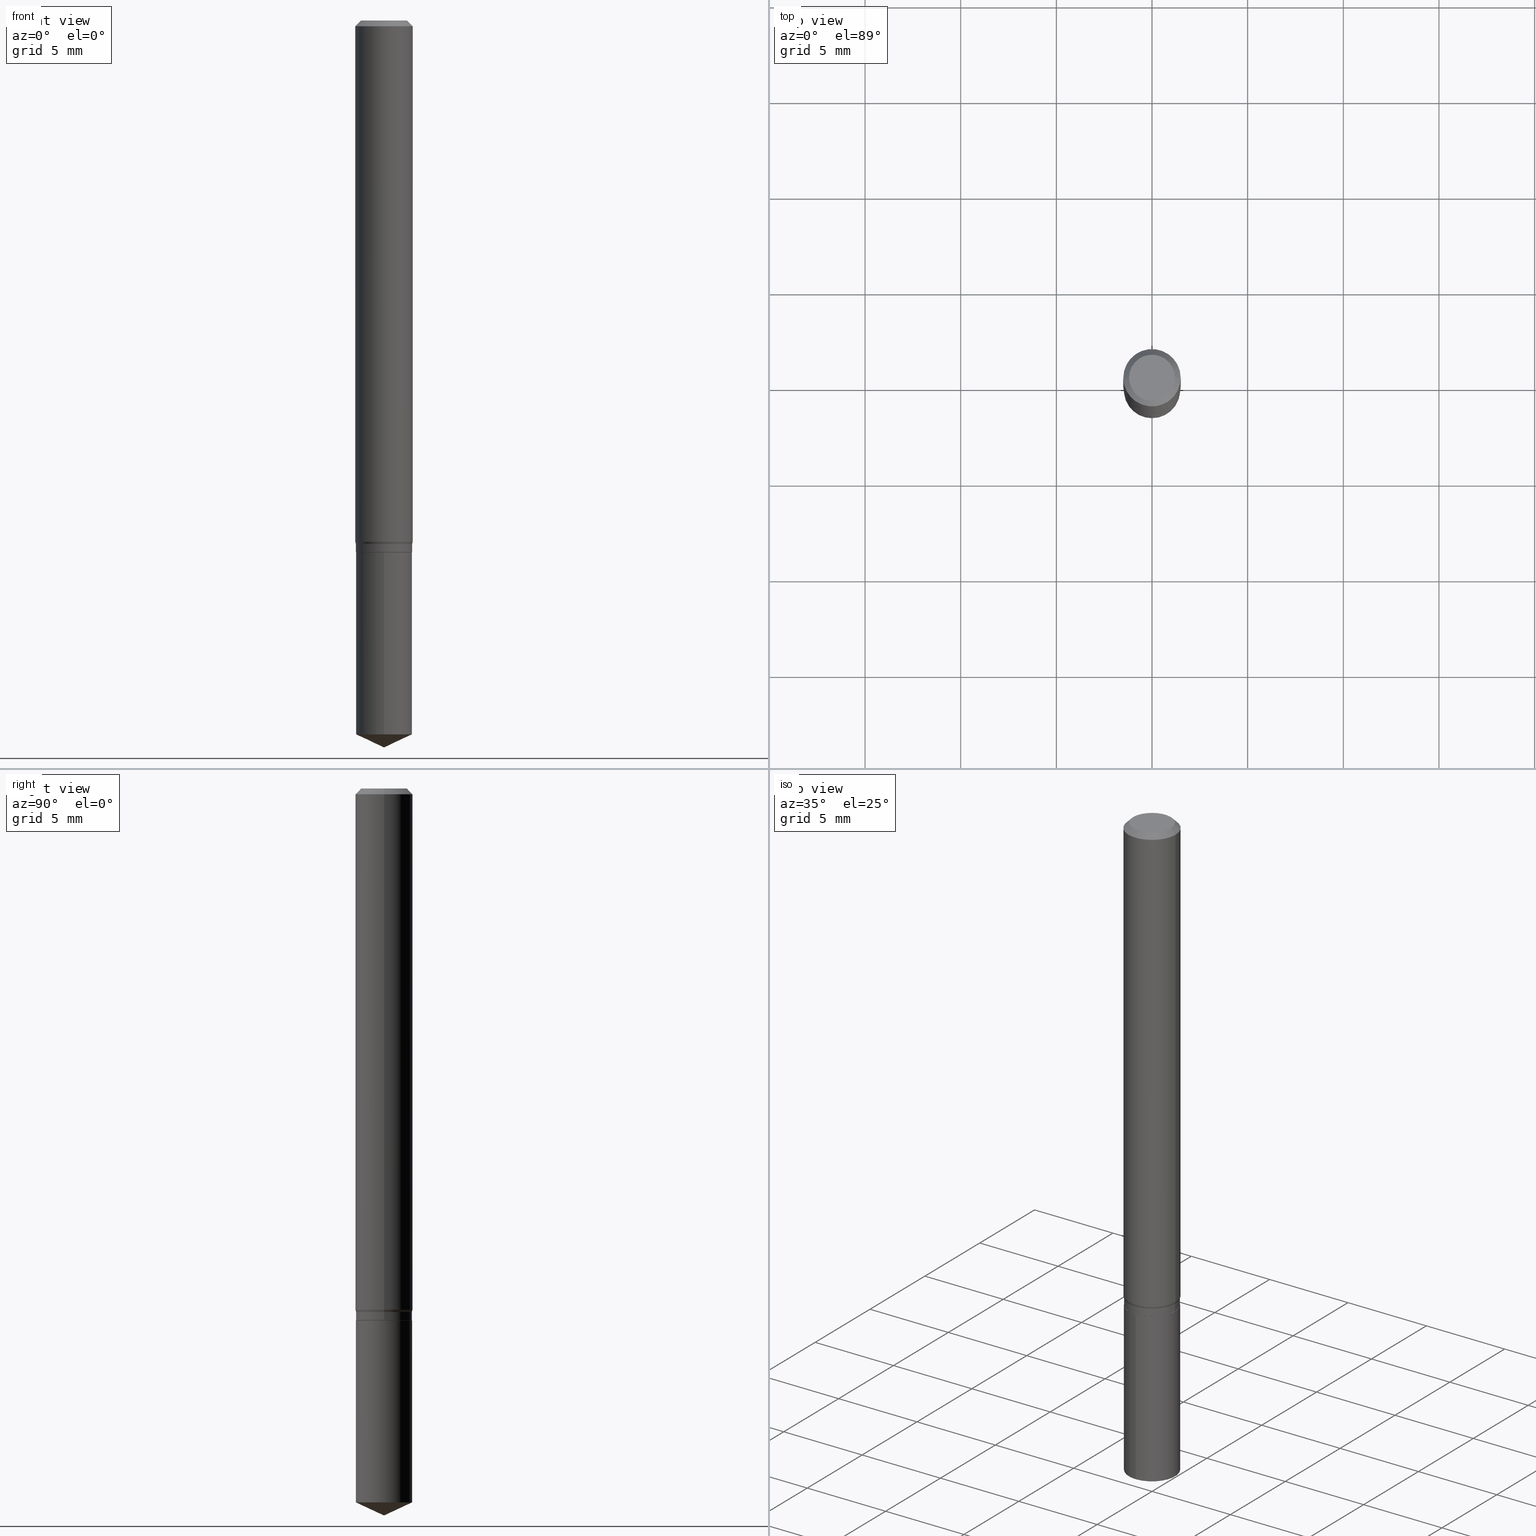
[diagram: canonical four-view strip — front | top / right | iso, engineering-drawing reading convention]
A machine part, canonical four-view strip (front | top / right | iso — engineering-drawing reading convention). The complete STEP part file that produces these views, byte-faithful:
ISO-10303-21;
HEADER;
FILE_DESCRIPTION (( 'STEP AP203' ),
    '1' );
FILE_NAME ('08057.STEP',
    '2024-04-24T10:11:01',
    ( '' ),
    ( '' ),
    'SwSTEP 2.0',
    'SolidWorks 2023',
    '' );
FILE_SCHEMA (( 'CONFIG_CONTROL_DESIGN' ));
ENDSEC;

DATA;
#1 = PERSON ( 'UNSPECIFIED', 'UNSPECIFIED', 'UNSPECIFIED', ('UNSPECIFIED'), ('UNSPECIFIED'), ('UNSPECIFIED') ) ;
#2 = COORDINATED_UNIVERSAL_TIME_OFFSET ( 5, 0, .BEHIND. ) ;
#3 = AXIS2_PLACEMENT_3D ( 'NONE', #278, #166, #120 ) ;
#4 = APPROVAL_PERSON_ORGANIZATION ( #38, #121, #346 ) ;
#5 = LINE ( 'NONE', #8, #486 ) ;
#6 = APPLICATION_PROTOCOL_DEFINITION ( 'international standard', 'config_control_design', 1994, #290 ) ;
#7 = EDGE_CURVE ( 'NONE', #10, #58, #234, .T. ) ;
#8 = CARTESIAN_POINT ( 'NONE',  ( 0.05734999999999999820, -4.221899234929130680E-15, -1.094500000000000028 ) ) ;
#9 =( NAMED_UNIT ( * ) PLANE_ANGLE_UNIT ( ) SI_UNIT ( $, .RADIAN. ) );
#10 = VERTEX_POINT ( 'NONE', #389 ) ;
#11 = MANIFOLD_SOLID_BREP ( 'Body-Move/Copy2[1]', #316 ) ;
#12 = CIRCLE ( 'NONE', #219, 0.05904999999999999832 ) ;
#13 = DIRECTION ( 'NONE',  ( 1.000000000000000000, -6.982962677686266711E-15, 4.876185090822587894E-29 ) ) ;
#14 = DIRECTION ( 'NONE',  ( -2.445468806185136597E-29, 3.491481338843145583E-15, 1.000000000000000000 ) ) ;
#15 = EDGE_CURVE ( 'NONE', #142, #489, #448, .T. ) ;
#16 = CARTESIAN_POINT ( 'NONE',  ( 3.592693452449994614E-29, -5.129424701352268102E-15, -1.469124101975733288 ) ) ;
#17 = VERTEX_POINT ( 'NONE', #252 ) ;
#18 = ORIENTED_EDGE ( 'NONE', *, *, #254, .F. ) ;
#19 = DIRECTION ( 'NONE',  ( -2.445468806185136877E-29, 3.491481338843145188E-15, 1.000000000000000000 ) ) ;
#20 = AXIS2_PLACEMENT_3D ( 'NONE', #198, #472, #367 ) ;
#21 = AXIS2_PLACEMENT_3D ( 'NONE', #158, #425, #207 ) ;
#22 = EDGE_CURVE ( 'NONE', #458, #137, #12, .T. ) ;
#23 = DIRECTION ( 'NONE',  ( 0.7071067811865453523, -7.319954787623248157E-15, -0.7071067811865496822 ) ) ;
#24 = PLANE ( 'NONE',  #188 ) ;
#25 = PERSON_AND_ORGANIZATION ( #1, #88 ) ;
#26 = AXIS2_PLACEMENT_3D ( 'NONE', #419, #83, #241 ) ;
#27 = CALENDAR_DATE ( 2024, 24, 4 ) ;
#28 = ORIENTED_EDGE ( 'NONE', *, *, #71, .T. ) ;
#29 = CARTESIAN_POINT ( 'NONE',  ( -0.05784999999999999865, -3.379128594743958630E-15, -1.077099999999999946 ) ) ;
#30 = PERSON_AND_ORGANIZATION_ROLE ( 'creator' ) ;
#31 = CC_DESIGN_PERSON_AND_ORGANIZATION_ASSIGNMENT ( #333, #377, ( #317 ) ) ;
#32 = CARTESIAN_POINT ( 'NONE',  ( 3.658651059288795076E-29, -5.223626456482161457E-15, -1.496099999999999985 ) ) ;
#33 = CIRCLE ( 'NONE', #292, 0.05784999999999999865 ) ;
#34 = LOCAL_TIME ( 6, 11, 1.000000000000000000, #324 ) ;
#35 = DIRECTION ( 'NONE',  ( -6.982962677686265922E-15, -1.000000000000000000, 2.361147790548196524E-15 ) ) ;
#36 = EDGE_CURVE ( 'NONE', #42, #267, #431, .T. ) ;
#37 = ORIENTED_EDGE ( 'NONE', *, *, #347, .T. ) ;
#38 = PERSON_AND_ORGANIZATION ( #1, #88 ) ;
#39 = DIRECTION ( 'NONE',  ( -2.445468806185136597E-29, 3.491481338843145583E-15, 1.000000000000000000 ) ) ;
#40 = EDGE_CURVE ( 'NONE', #137, #458, #118, .T. ) ;
#41 = CONICAL_SURFACE ( 'NONE', #235, 0.05784999999999999865, 0.2617993877991466878 ) ;
#42 = VERTEX_POINT ( 'NONE', #242 ) ;
#43 = FACE_OUTER_BOUND ( 'NONE', #309, .T. ) ;
#44 = ORIENTED_EDGE ( 'NONE', *, *, #276, .F. ) ;
#45 = ADVANCED_FACE ( 'NONE', ( #394 ), #162, .T. ) ;
#46 = CARTESIAN_POINT ( 'NONE',  ( 0.05904999999999999832, -4.535783407291118600E-16, -0.01181000000000006871 ) ) ;
#47 = DIRECTION ( 'NONE',  ( -2.445468806185136597E-29, 3.491481338843145583E-15, 1.000000000000000000 ) ) ;
#48 = AXIS2_PLACEMENT_3D ( 'NONE', #360, #164, #59 ) ;
#49 = APPROVAL ( #355, 'UNSPECIFIED' ) ;
#50 = DIRECTION ( 'NONE',  ( 0.2588190451025181305, 1.565188264969647211E-15, 0.9659258262890689783 ) ) ;
#51 = ORIENTED_EDGE ( 'NONE', *, *, #63, .F. ) ;
#52 = ORIENTED_EDGE ( 'NONE', *, *, #391, .T. ) ;
#53 = DIRECTION ( 'NONE',  ( -2.445468806185136597E-29, 3.491481338843145583E-15, 1.000000000000000000 ) ) ;
#54 = CALENDAR_DATE ( 2024, 24, 4 ) ;
#55 = DIRECTION ( 'NONE',  ( -2.445468806185136877E-29, 3.491481338843145188E-15, 1.000000000000000000 ) ) ;
#56 =( CONVERSION_BASED_UNIT ( 'INCH', #205 ) LENGTH_UNIT ( ) NAMED_UNIT ( #156 ) );
#57 = EDGE_LOOP ( 'NONE', ( #467, #465, #386, #319 ) ) ;
#58 = VERTEX_POINT ( 'NONE', #463 ) ;
#59 = DIRECTION ( 'NONE',  ( 1.000000000000000000, -6.982962677686265133E-15, 0.000000000000000000 ) ) ;
#60 = ADVANCED_FACE ( 'NONE', ( #244 ), #100, .T. ) ;
#61 = CARTESIAN_POINT ( 'NONE',  ( 2.676565608369632355E-29, -3.821426325363822773E-15, -1.094500000000000028 ) ) ;
#62 = DIRECTION ( 'NONE',  ( 2.445458899330789267E-29, -3.491495526022433599E-15, -1.000000000000000000 ) ) ;
#63 = EDGE_CURVE ( 'NONE', #267, #458, #287, .T. ) ;
#64 = DIRECTION ( 'NONE',  ( 6.439704144417028775E-15, 0.9063077870366521571, 0.4226182617406948894 ) ) ;
#65 = APPROVAL_ROLE ( '' ) ;
#66 = AXIS2_PLACEMENT_3D ( 'NONE', #480, #138, #187 ) ;
#67 = FACE_OUTER_BOUND ( 'NONE', #151, .T. ) ;
#68 = PRODUCT_DEFINITION_FORMATION_WITH_SPECIFIED_SOURCE ( 'ANY', '', #82, .NOT_KNOWN. ) ;
#69 = CARTESIAN_POINT ( 'NONE',  ( 2.634014451142010375E-29, -3.760674550067952083E-15, -1.077099999999999946 ) ) ;
#70 = DESIGN_CONTEXT ( 'detailed design', #113, 'design' ) ;
#71 = EDGE_CURVE ( 'NONE', #42, #255, #435, .T. ) ;
#72 = DIRECTION ( 'NONE',  ( -2.445458899330790108E-29, 3.491495526022433599E-15, 1.000000000000000000 ) ) ;
#73 = VECTOR ( 'NONE', #263, 39.37007874015748143 ) ;
#74 = CC_DESIGN_APPROVAL ( #409, ( #317 ) ) ;
#75 = DIRECTION ( 'NONE',  ( -0.7071067811865453523, 2.468850131082234184E-15, -0.7071067811865496822 ) ) ;
#76 = EDGE_CURVE ( 'NONE', #439, #142, #33, .T. ) ;
#77 = ORIENTED_EDGE ( 'NONE', *, *, #22, .F. ) ;
#78 = CARTESIAN_POINT ( 'NONE',  ( 0.000000000000000000, 0.000000000000000000, 0.000000000000000000 ) ) ;
#79 = CYLINDRICAL_SURFACE ( 'NONE', #171, 0.05784999999999999865 ) ;
#80 = ORIENTED_EDGE ( 'NONE', *, *, #168, .T. ) ;
#81 = FACE_OUTER_BOUND ( 'NONE', #469, .T. ) ;
#82 = PRODUCT ( '08057', '08057', '', ( #411 ) ) ;
#83 = DIRECTION ( 'NONE',  ( -2.445458899330790108E-29, 3.491495526022433205E-15, 1.000000000000000000 ) ) ;
#84 = CARTESIAN_POINT ( 'NONE',  ( 2.676565608369632355E-29, -3.821426325363822773E-15, -1.094500000000000028 ) ) ;
#85 = EDGE_CURVE ( 'NONE', #414, #42, #427, .T. ) ;
#86 = LINE ( 'NONE', #323, #259 ) ;
#87 = VECTOR ( 'NONE', #50, 39.37007874015748143 ) ;
#88 = ORGANIZATION ( 'UNSPECIFIED', 'UNSPECIFIED', '' ) ;
#89 = CALENDAR_DATE ( 2024, 24, 4 ) ;
#90 = DIRECTION ( 'NONE',  ( 1.000000000000000000, -6.982962677686265922E-15, 4.876176775795935793E-29 ) ) ;
#91 = DIRECTION ( 'NONE',  ( -2.445468806185136597E-29, 3.491481338843145583E-15, 1.000000000000000000 ) ) ;
#92 = VERTEX_POINT ( 'NONE', #475 ) ;
#93 = CARTESIAN_POINT ( 'NONE',  ( 0.05905000000000006771, -4.123439461173745257E-16, 2.879382386107503723E-30 ) ) ;
#94 = EDGE_CURVE ( 'NONE', #281, #10, #134, .T. ) ;
#95 = ORIENTED_EDGE ( 'NONE', *, *, #408, .F. ) ;
#96 = CARTESIAN_POINT ( 'NONE',  ( 2.888098660104663328E-31, -4.123439461173779030E-17, -0.01181000000000006871 ) ) ;
#97 = CC_DESIGN_PERSON_AND_ORGANIZATION_ASSIGNMENT ( #25, #30, ( #68 ) ) ;
#98 = CARTESIAN_POINT ( 'NONE',  ( 2.676565608369631794E-29, -3.821426325363822773E-15, -1.094499999999999806 ) ) ;
#99 = ORIENTED_EDGE ( 'NONE', *, *, #7, .T. ) ;
#100 = CONICAL_SURFACE ( 'NONE', #265, 84.42940631927430672, 1.134464013796315784 ) ;
#101 = LOCAL_TIME ( 6, 11, 1.000000000000000000, #373 ) ;
#102 = LINE ( 'NONE', #375, #302 ) ;
#103 = DIRECTION ( 'NONE',  ( -2.438088387897960049E-29, 3.491481338843145188E-15, 1.000000000000000000 ) ) ;
#104 = FACE_OUTER_BOUND ( 'NONE', #313, .T. ) ;
#105 = VERTEX_POINT ( 'NONE', #432 ) ;
#106 = CONICAL_SURFACE ( 'NONE', #387, 0.05904999999999999832, 0.7853981633974452814 ) ;
#107 = DIRECTION ( 'NONE',  ( 1.000000000000000000, -6.982962677686265922E-15, 4.876176775795935793E-29 ) ) ;
#108 = ADVANCED_FACE ( 'NONE', ( #253 ), #204, .T. ) ;
#109 = CARTESIAN_POINT ( 'NONE',  ( -4.039643909041237478E-16, -0.05785000000000382198, -1.094499999999999806 ) ) ;
#110 = AXIS2_PLACEMENT_3D ( 'NONE', #401, #370, #90 ) ;
#111 = AXIS2_PLACEMENT_3D ( 'NONE', #345, #453, #268 ) ;
#112 = ORIENTED_EDGE ( 'NONE', *, *, #371, .F. ) ;
#113 = APPLICATION_CONTEXT ( 'configuration controlled 3d designs of mechanical parts and assemblies' ) ;
#114 = EDGE_LOOP ( 'NONE', ( #481, #192, #126, #44 ) ) ;
#115 = DIRECTION ( 'NONE',  ( 0.000000000000000000, 0.000000000000000000, 1.000000000000000000 ) ) ;
#116 = PRODUCT_DEFINITION_SHAPE ( 'NONE', 'NONE',  #159 ) ;
#117 = ORIENTED_EDGE ( 'NONE', *, *, #329, .F. ) ;
#118 = CIRCLE ( 'NONE', #245, 0.05904999999999999832 ) ;
#119 = AXIS2_PLACEMENT_3D ( 'NONE', #308, #262, #189 ) ;
#120 = DIRECTION ( 'NONE',  ( -6.982962677686268288E-15, -1.000000000000000000, 3.520397390770455053E-15 ) ) ;
#121 = APPROVAL ( #193, 'UNSPECIFIED' ) ;
#122 = DIRECTION ( 'NONE',  ( -1.000000000000000000, 6.982962677686266711E-15, 0.000000000000000000 ) ) ;
#123 = DIRECTION ( 'NONE',  ( -2.445458899330790108E-29, 3.491495526022433205E-15, 1.000000000000000000 ) ) ;
#124 = ORIENTED_EDGE ( 'NONE', *, *, #254, .T. ) ;
#125 = CARTESIAN_POINT ( 'NONE',  ( 2.676565608369631794E-29, -3.821426325363822773E-15, -1.094499999999999806 ) ) ;
#126 = ORIENTED_EDGE ( 'NONE', *, *, #85, .T. ) ;
#127 = VECTOR ( 'NONE', #186, 39.37007874015748854 ) ;
#128 = EDGE_CURVE ( 'NONE', #105, #489, #450, .T. ) ;
#129 = CARTESIAN_POINT ( 'NONE',  ( -0.04724000000000000421, 3.504923541997677355E-16, -3.380025165670481712E-19 ) ) ;
#130 = DIRECTION ( 'NONE',  ( -2.445468806185136877E-29, 3.491481338843145188E-15, 1.000000000000000000 ) ) ;
#131 = DIRECTION ( 'NONE',  ( -6.982962677686268288E-15, -1.000000000000000000, 3.520397390770455053E-15 ) ) ;
#132 = ADVANCED_FACE ( 'NONE', ( #318 ), #328, .T. ) ;
#133 = EDGE_LOOP ( 'NONE', ( #18, #52, #331 ) ) ;
#134 = CIRCLE ( 'NONE', #471, 0.05734999999999999820 ) ;
#135 = AXIS2_PLACEMENT_3D ( 'NONE', #283, #91, #279 ) ;
#136 = CARTESIAN_POINT ( 'NONE',  ( 2.676565608369632355E-29, -3.821426325363822773E-15, -1.094500000000000028 ) ) ;
#137 = VERTEX_POINT ( 'NONE', #275 ) ;
#138 = DIRECTION ( 'NONE',  ( -2.445468806185136597E-29, 3.491481338843145583E-15, 1.000000000000000000 ) ) ;
#139 = APPROVAL_ROLE ( '' ) ;
#140 = DIRECTION ( 'NONE',  ( -1.000000000000000000, 6.982962677686266711E-15, 0.000000000000000000 ) ) ;
#141 = APPROVAL_DATE_TIME ( #222, #49 ) ;
#142 = VERTEX_POINT ( 'NONE', #421 ) ;
#143 = EDGE_CURVE ( 'NONE', #255, #256, #86, .T. ) ;
#144 = CARTESIAN_POINT ( 'NONE',  ( 8.562420094366031687E-30, -6.428233325420959968E-15, -1.094500000000000028 ) ) ;
#145 = DIRECTION ( 'NONE',  ( 2.445468806185136597E-29, -3.491481338843145583E-15, -1.000000000000000000 ) ) ;
#146 = CIRCLE ( 'NONE', #135, 0.05734999999999999820 ) ;
#147 = CARTESIAN_POINT ( 'NONE',  ( 2.676565608369631794E-29, -3.821426325363822773E-15, -1.094499999999999806 ) ) ;
#148 = ADVANCED_FACE ( 'NONE', ( #250 ), #396, .T. ) ;
#149 = DIRECTION ( 'NONE',  ( 1.000000000000000000, -6.982962677686265133E-15, 0.000000000000000000 ) ) ;
#150 = AXIS2_PLACEMENT_3D ( 'NONE', #147, #196, #35 ) ;
#151 = EDGE_LOOP ( 'NONE', ( #206, #182, #365, #351 ) ) ;
#152 = CALENDAR_DATE ( 2024, 24, 4 ) ;
#153 = DIRECTION ( 'NONE',  ( -6.982962677686265922E-15, -1.000000000000000000, 2.361147790548196524E-15 ) ) ;
#154 = CARTESIAN_POINT ( 'NONE',  ( -0.05734999999999999820, -3.413930066405405625E-15, -1.094500000000000028 ) ) ;
#155 = ORIENTED_EDGE ( 'NONE', *, *, #128, .F. ) ;
#156 = DIMENSIONAL_EXPONENTS ( 1.000000000000000000, 0.000000000000000000, 0.000000000000000000, 0.000000000000000000, 0.000000000000000000, 0.000000000000000000, 0.000000000000000000 ) ;
#157 = ORIENTED_EDGE ( 'NONE', *, *, #15, .F. ) ;
#158 = CARTESIAN_POINT ( 'NONE',  ( 2.675342873966538993E-29, -3.819680584694400481E-15, -1.093999999999999861 ) ) ;
#159 = PRODUCT_DEFINITION ( 'UNKNOWN', '', #68, #70 ) ;
#160 = DIRECTION ( 'NONE',  ( -6.982962677686265922E-15, -1.000000000000000000, 2.361147790548196524E-15 ) ) ;
#161 = AXIS2_PLACEMENT_3D ( 'NONE', #169, #53, #208 ) ;
#162 = CONICAL_SURFACE ( 'NONE', #476, 0.05734999999999999820, 0.7853981633972775267 ) ;
#163 = EDGE_LOOP ( 'NONE', ( #247, #335 ) ) ;
#164 = DIRECTION ( 'NONE',  ( -2.445468806185136597E-29, 3.491481338843145583E-15, 1.000000000000000000 ) ) ;
#165 = CARTESIAN_POINT ( 'NONE',  ( 4.110489726372537918E-16, 0.05784999999999485693, -1.469124101975733732 ) ) ;
#166 = DIRECTION ( 'NONE',  ( -2.445458899330790108E-29, 3.491495526022433205E-15, 1.000000000000000000 ) ) ;
#167 = PERSON_AND_ORGANIZATION_ROLE ( 'creator' ) ;
#168 = EDGE_CURVE ( 'NONE', #256, #137, #326, .T. ) ;
#169 = CARTESIAN_POINT ( 'NONE',  ( 0.000000000000000000, 0.000000000000000000, 0.000000000000000000 ) ) ;
#170 = CIRCLE ( 'NONE', #20, 0.05784999999999999865 ) ;
#171 = AXIS2_PLACEMENT_3D ( 'NONE', #228, #490, #153 ) ;
#172 = DIRECTION ( 'NONE',  ( -6.982962677686265922E-15, -1.000000000000000000, 4.722295581096393049E-15 ) ) ;
#173 = MANIFOLD_SOLID_BREP ( 'Body-Move/Copy2[2]', #201 ) ;
#174 = EDGE_LOOP ( 'NONE', ( #28, #214, #195, #243 ) ) ;
#175 = DIRECTION ( 'NONE',  ( 0.7071067811864267805, -2.468850131080992517E-15, 0.7071067811866682540 ) ) ;
#176 = FACE_OUTER_BOUND ( 'NONE', #269, .T. ) ;
#177 = EDGE_LOOP ( 'NONE', ( #315, #183 ) ) ;
#178 = DIRECTION ( 'NONE',  ( 2.438088387897960049E-29, -3.491481338843145188E-15, -1.000000000000000000 ) ) ;
#179 = ADVANCED_FACE ( 'NONE', ( #372 ), #24, .F. ) ;
#180 = PERSON_AND_ORGANIZATION_ROLE ( 'design_supplier' ) ;
#181 = VECTOR ( 'NONE', #19, 39.37007874015748143 ) ;
#182 = ORIENTED_EDGE ( 'NONE', *, *, #397, .F. ) ;
#183 = ORIENTED_EDGE ( 'NONE', *, *, #128, .T. ) ;
#184 = CARTESIAN_POINT ( 'NONE',  ( -0.05905000000000013016, -3.325462601701321059E-15, -1.072621539030916837 ) ) ;
#185 = PERSON_AND_ORGANIZATION ( #1, #88 ) ;
#186 = DIRECTION ( 'NONE',  ( -6.328713451373372534E-15, -0.9063077870366490485, 0.4226182617407011066 ) ) ;
#187 = DIRECTION ( 'NONE',  ( 1.000000000000000000, -6.982962677686266711E-15, 4.876176775795936353E-29 ) ) ;
#188 = AXIS2_PLACEMENT_3D ( 'NONE', #338, #178, #332 ) ;
#189 = DIRECTION ( 'NONE',  ( 1.000000000000000000, -6.982962677686265922E-15, 4.876176775795935793E-29 ) ) ;
#190 = ADVANCED_FACE ( 'NONE', ( #104 ), #348, .T. ) ;
#191 = CYLINDRICAL_SURFACE ( 'NONE', #119, 0.05784999999999999865 ) ;
#192 = ORIENTED_EDGE ( 'NONE', *, *, #408, .T. ) ;
#193 = APPROVAL_STATUS ( 'not_yet_approved' ) ;
#194 = AXIS2_PLACEMENT_3D ( 'NONE', #366, #320, #122 ) ;
#195 = ORIENTED_EDGE ( 'NONE', *, *, #347, .F. ) ;
#196 = DIRECTION ( 'NONE',  ( -2.445458899330790108E-29, 3.491495526022433205E-15, 1.000000000000000000 ) ) ;
#197 = CC_DESIGN_PERSON_AND_ORGANIZATION_ASSIGNMENT ( #231, #384, ( #82 ) ) ;
#198 = CARTESIAN_POINT ( 'NONE',  ( 2.634014451142010375E-29, -3.760674550067952083E-15, -1.077099999999999946 ) ) ;
#199 = ORIENTED_EDGE ( 'NONE', *, *, #312, .F. ) ;
#200 = DIRECTION ( 'NONE',  ( -2.445468806185136877E-29, 3.491481338843145188E-15, 1.000000000000000000 ) ) ;
#201 = CLOSED_SHELL ( 'NONE', ( #45, #418, #223, #271, #334, #108, #382, #148, #264, #179, #378, #190 ) ) ;
#202 = CONICAL_SURFACE ( 'NONE', #350, 0.05784999999999999865, 0.2617993877991466878 ) ;
#203 = CARTESIAN_POINT ( 'NONE',  ( -0.05904999999999999832, 3.711095515056362547E-16, -0.01181000000000006871 ) ) ;
#204 = CYLINDRICAL_SURFACE ( 'NONE', #110, 0.05784999999999999865 ) ;
#205 = LENGTH_MEASURE_WITH_UNIT ( LENGTH_MEASURE( 0.02539999999999999897 ), #376 );
#206 = ORIENTED_EDGE ( 'NONE', *, *, #217, .F. ) ;
#207 = DIRECTION ( 'NONE',  ( 1.000000000000000000, -6.982962677686265133E-15, 0.000000000000000000 ) ) ;
#208 = DIRECTION ( 'NONE',  ( 1.000000000000000000, -6.982962677686266711E-15, 4.876176775795936353E-29 ) ) ;
#209 = PLANE ( 'NONE',  #412 ) ;
#210 = ORIENTED_EDGE ( 'NONE', *, *, #459, .F. ) ;
#211 = DIRECTION ( 'NONE',  ( -2.445458899330790108E-29, 3.491495526022433205E-15, 1.000000000000000000 ) ) ;
#212 = AXIS2_PLACEMENT_3D ( 'NONE', #298, #257, #218 ) ;
#213 = CIRCLE ( 'NONE', #359, 0.04724000000000000421 ) ;
#214 = ORIENTED_EDGE ( 'NONE', *, *, #143, .T. ) ;
#215 = DIRECTION ( 'NONE',  ( -2.445468806185136597E-29, 3.491481338843145583E-15, 1.000000000000000000 ) ) ;
#216 = ORIENTED_EDGE ( 'NONE', *, *, #391, .F. ) ;
#217 = EDGE_CURVE ( 'NONE', #17, #458, #102, .T. ) ;
#218 = DIRECTION ( 'NONE',  ( -6.982962677686265922E-15, -1.000000000000000000, 4.722295581096393049E-15 ) ) ;
#219 = AXIS2_PLACEMENT_3D ( 'NONE', #96, #215, #282 ) ;
#220 = APPROVAL_PERSON_ORGANIZATION ( #258, #409, #65 ) ;
#221 = DIRECTION ( 'NONE',  ( -2.445468806185136597E-29, 3.491481338843145583E-15, 1.000000000000000000 ) ) ;
#222 = DATE_AND_TIME ( #227, #343 ) ;
#223 = ADVANCED_FACE ( 'NONE', ( #176 ), #304, .T. ) ;
#224 = ORIENTED_EDGE ( 'NONE', *, *, #289, .F. ) ;
#225 = LINE ( 'NONE', #32, #127 ) ;
#226 = DIRECTION ( 'NONE',  ( -2.445468806185136597E-29, 3.491481338843145583E-15, 1.000000000000000000 ) ) ;
#227 = CALENDAR_DATE ( 2024, 24, 4 ) ;
#228 = CARTESIAN_POINT ( 'NONE',  ( 2.676565608369631794E-29, -3.821426325363822773E-15, -1.094499999999999806 ) ) ;
#229 = AXIS2_PLACEMENT_3D ( 'NONE', #136, #221, #438 ) ;
#230 = CARTESIAN_POINT ( 'NONE',  ( 2.675342873966538993E-29, -3.819680584694400481E-15, -1.093999999999999861 ) ) ;
#231 = PERSON_AND_ORGANIZATION ( #1, #88 ) ;
#232 = DIRECTION ( 'NONE',  ( -2.445468806185136597E-29, 3.491481338843145583E-15, 1.000000000000000000 ) ) ;
#233 = CARTESIAN_POINT ( 'NONE',  ( 8.265746106709734507E-48, -1.180129479067563789E-33, -3.380025165646692144E-19 ) ) ;
#234 = LINE ( 'NONE', #154, #423 ) ;
#235 = AXIS2_PLACEMENT_3D ( 'NONE', #69, #226, #484 ) ;
#236 = AXIS2_PLACEMENT_3D ( 'NONE', #314, #249, #13 ) ;
#237 = EDGE_CURVE ( 'NONE', #142, #439, #416, .T. ) ;
#238 = CYLINDRICAL_SURFACE ( 'NONE', #26, 0.05784999999999999865 ) ;
#239 = ORIENTED_EDGE ( 'NONE', *, *, #466, .T. ) ;
#240 = CC_DESIGN_DATE_AND_TIME_ASSIGNMENT ( #301, #341, ( #317 ) ) ;
#241 = DIRECTION ( 'NONE',  ( -6.982962677686265922E-15, -1.000000000000000000, 2.361147790548196524E-15 ) ) ;
#242 = CARTESIAN_POINT ( 'NONE',  ( 0.05784999999999999865, -4.164638940972102208E-15, -1.077099999999999946 ) ) ;
#243 = ORIENTED_EDGE ( 'NONE', *, *, #36, .F. ) ;
#244 = FACE_OUTER_BOUND ( 'NONE', #133, .T. ) ;
#245 = AXIS2_PLACEMENT_3D ( 'NONE', #330, #14, #368 ) ;
#246 = CIRCLE ( 'NONE', #236, 0.04724000000000000421 ) ;
#247 = ORIENTED_EDGE ( 'NONE', *, *, #397, .T. ) ;
#248 = SHAPE_DEFINITION_REPRESENTATION ( #116, #483 ) ;
#249 = DIRECTION ( 'NONE',  ( -2.445468806185136597E-29, 3.491481338843145583E-15, 1.000000000000000000 ) ) ;
#250 = FACE_OUTER_BOUND ( 'NONE', #57, .T. ) ;
#251 = LINE ( 'NONE', #398, #388 ) ;
#252 = CARTESIAN_POINT ( 'NONE',  ( 0.04724000000000000421, -3.852183633974369345E-16, -3.380025165621689721E-19 ) ) ;
#253 = FACE_OUTER_BOUND ( 'NONE', #114, .T. ) ;
#254 = EDGE_CURVE ( 'NONE', #92, #439, #440, .T. ) ;
#255 = VERTEX_POINT ( 'NONE', #29 ) ;
#256 = VERTEX_POINT ( 'NONE', #184 ) ;
#257 = DIRECTION ( 'NONE',  ( -2.445458899330790108E-29, 3.491495526022433205E-15, 1.000000000000000000 ) ) ;
#258 = PERSON_AND_ORGANIZATION ( #1, #88 ) ;
#259 = VECTOR ( 'NONE', #468, 39.37007874015748143 ) ;
#260 = APPROVAL_PERSON_ORGANIZATION ( #356, #49, #139 ) ;
#261 = DIRECTION ( 'NONE',  ( -2.445468806185136597E-29, 3.491481338843145583E-15, 1.000000000000000000 ) ) ;
#262 = DIRECTION ( 'NONE',  ( -2.445468806185136597E-29, 3.491481338843145583E-15, 1.000000000000000000 ) ) ;
#263 = DIRECTION ( 'NONE',  ( -2.445458899330790108E-29, 3.491495526022433599E-15, 1.000000000000000000 ) ) ;
#264 = ADVANCED_FACE ( 'NONE', ( #67 ), #106, .T. ) ;
#265 = AXIS2_PLACEMENT_3D ( 'NONE', #399, #123, #131 ) ;
#266 = AXIS2_PLACEMENT_3D ( 'NONE', #78, #115, #390 ) ;
#267 = VERTEX_POINT ( 'NONE', #300 ) ;
#268 = DIRECTION ( 'NONE',  ( 1.000000000000000000, -6.982962677686265133E-15, 0.000000000000000000 ) ) ;
#269 = EDGE_LOOP ( 'NONE', ( #37, #80, #77, #51 ) ) ;
#270 = LINE ( 'NONE', #410, #485 ) ;
#271 = ADVANCED_FACE ( 'NONE', ( #443 ), #41, .T. ) ;
#272 = EDGE_LOOP ( 'NONE', ( #441, #415, #405, #117 ) ) ;
#273 = CIRCLE ( 'NONE', #460, 0.05784999999999999865 ) ;
#274 = EDGE_LOOP ( 'NONE', ( #291, #311, #354, #285 ) ) ;
#275 = CARTESIAN_POINT ( 'NONE',  ( -0.05904999999999999832, -1.473560755423358858E-15, -0.01181000000000006871 ) ) ;
#276 = EDGE_CURVE ( 'NONE', #255, #42, #170, .T. ) ;
#277 = ORIENTED_EDGE ( 'NONE', *, *, #371, .T. ) ;
#278 = CARTESIAN_POINT ( 'NONE',  ( -9.261924752013118283E-28, 1.322368428517963298E-13, 37.87397874015748300 ) ) ;
#279 = DIRECTION ( 'NONE',  ( 1.000000000000000000, -6.982962677686264344E-15, 0.000000000000000000 ) ) ;
#280 = VERTEX_POINT ( 'NONE', #129 ) ;
#281 = VERTEX_POINT ( 'NONE', #456 ) ;
#282 = DIRECTION ( 'NONE',  ( 1.000000000000000000, -6.982962677686266711E-15, 0.000000000000000000 ) ) ;
#283 = CARTESIAN_POINT ( 'NONE',  ( 2.676565608369632355E-29, -3.821426325363822773E-15, -1.094500000000000028 ) ) ;
#284 = DIRECTION ( 'NONE',  ( 1.000000000000000000, -6.982962677686264344E-15, 0.000000000000000000 ) ) ;
#285 = ORIENTED_EDGE ( 'NONE', *, *, #85, .F. ) ;
#286 = DATE_AND_TIME ( #89, #393 ) ;
#287 = LINE ( 'NONE', #93, #357 ) ;
#288 = PERSON_AND_ORGANIZATION ( #1, #88 ) ;
#289 = EDGE_CURVE ( 'NONE', #439, #105, #270, .T. ) ;
#290 = APPLICATION_CONTEXT ( 'configuration controlled 3d designs of mechanical parts and assemblies' ) ;
#291 = ORIENTED_EDGE ( 'NONE', *, *, #296, .T. ) ;
#292 = AXIS2_PLACEMENT_3D ( 'NONE', #16, #211, #172 ) ;
#293 = LOCAL_TIME ( 6, 11, 1.000000000000000000, #2 ) ;
#294 = ORIENTED_EDGE ( 'NONE', *, *, #237, .F. ) ;
#295 = SECURITY_CLASSIFICATION_LEVEL ( 'unclassified' ) ;
#296 = EDGE_CURVE ( 'NONE', #414, #58, #273, .T. ) ;
#297 = ORIENTED_EDGE ( 'NONE', *, *, #296, .F. ) ;
#298 = CARTESIAN_POINT ( 'NONE',  ( 3.592693452449994614E-29, -5.129424701352268102E-15, -1.469124101975733288 ) ) ;
#299 = PLANE ( 'NONE',  #303 ) ;
#300 = CARTESIAN_POINT ( 'NONE',  ( 0.05905000000000013016, -4.157382033285035472E-15, -1.072621539030916837 ) ) ;
#301 = DATE_AND_TIME ( #27, #101 ) ;
#302 = VECTOR ( 'NONE', #23, 39.37007874015748143 ) ;
#303 = AXIS2_PLACEMENT_3D ( 'NONE', #144, #103, #107 ) ;
#304 = CYLINDRICAL_SURFACE ( 'NONE', #66, 0.05905000000000006771 ) ;
#305 = DIRECTION ( 'NONE',  ( 6.982962677686265922E-15, 1.000000000000000000, -3.491495526022433599E-15 ) ) ;
#306 = ADVANCED_FACE ( 'NONE', ( #43 ), #79, .T. ) ;
#307 = ORIENTED_EDGE ( 'NONE', *, *, #94, .F. ) ;
#308 = CARTESIAN_POINT ( 'NONE',  ( 0.000000000000000000, 0.000000000000000000, 0.000000000000000000 ) ) ;
#309 = EDGE_LOOP ( 'NONE', ( #224, #322, #403, #155 ) ) ;
#310 = DATE_AND_TIME ( #152, #293 ) ;
#311 = ORIENTED_EDGE ( 'NONE', *, *, #482, .T. ) ;
#312 = EDGE_CURVE ( 'NONE', #489, #105, #461, .T. ) ;
#313 = EDGE_LOOP ( 'NONE', ( #395, #239, #277, #95 ) ) ;
#314 = CARTESIAN_POINT ( 'NONE',  ( 8.265746106709734507E-48, -1.180129479067563789E-33, -3.380025165646692144E-19 ) ) ;
#315 = ORIENTED_EDGE ( 'NONE', *, *, #312, .T. ) ;
#316 = CLOSED_SHELL ( 'NONE', ( #437, #132, #60, #306, #488 ) ) ;
#317 = SECURITY_CLASSIFICATION ( '', '', #295 ) ;
#318 = FACE_OUTER_BOUND ( 'NONE', #470, .T. ) ;
#319 = ORIENTED_EDGE ( 'NONE', *, *, #40, .F. ) ;
#320 = DIRECTION ( 'NONE',  ( 2.445468806185136597E-29, -3.491481338843145583E-15, -1.000000000000000000 ) ) ;
#321 = CARTESIAN_POINT ( 'NONE',  ( 0.05784999999999999865, -4.039643909041504704E-16, 2.820868264797948733E-30 ) ) ;
#322 = ORIENTED_EDGE ( 'NONE', *, *, #76, .T. ) ;
#323 = CARTESIAN_POINT ( 'NONE',  ( -0.05784999999999999865, -3.349625577430734430E-15, -1.077099999999999946 ) ) ;
#324 = COORDINATED_UNIVERSAL_TIME_OFFSET ( 5, 0, .BEHIND. ) ;
#325 = EDGE_LOOP ( 'NONE', ( #337, #99, #297, #112 ) ) ;
#326 = LINE ( 'NONE', #474, #374 ) ;
#327 = DATE_AND_TIME ( #54, #34 ) ;
#328 = CONICAL_SURFACE ( 'NONE', #3, 84.42940631927430672, 1.134464013796315784 ) ;
#329 = EDGE_CURVE ( 'NONE', #256, #267, #446, .T. ) ;
#330 = CARTESIAN_POINT ( 'NONE',  ( 2.888098660104663328E-31, -4.123439461173779030E-17, -0.01181000000000006871 ) ) ;
#331 = ORIENTED_EDGE ( 'NONE', *, *, #76, .F. ) ;
#332 = DIRECTION ( 'NONE',  ( -1.000000000000000000, 6.982962677686265922E-15, -4.876176775795935793E-29 ) ) ;
#333 = PERSON_AND_ORGANIZATION ( #1, #88 ) ;
#334 = ADVANCED_FACE ( 'NONE', ( #381 ), #191, .T. ) ;
#335 = ORIENTED_EDGE ( 'NONE', *, *, #358, .T. ) ;
#336 = CC_DESIGN_APPROVAL ( #49, ( #68 ) ) ;
#337 = ORIENTED_EDGE ( 'NONE', *, *, #94, .T. ) ;
#338 = CARTESIAN_POINT ( 'NONE',  ( 4.132873053354867254E-48, -5.900647395337818946E-34, -1.690012582823346072E-19 ) ) ;
#339 = ORIENTED_EDGE ( 'NONE', *, *, #237, .T. ) ;
#340 = CARTESIAN_POINT ( 'NONE',  ( 2.888098660104663328E-31, -4.123439461173779030E-17, -0.01181000000000006871 ) ) ;
#341 = DATE_TIME_ROLE ( 'classification_date' ) ;
#342 = UNCERTAINTY_MEASURE_WITH_UNIT (LENGTH_MEASURE( 1.000000000000000082E-05 ), #56, 'distance_accuracy_value', 'NONE');
#343 = LOCAL_TIME ( 6, 11, 1.000000000000000000, #444 ) ;
#344 = APPLICATION_PROTOCOL_DEFINITION ( 'international standard', 'config_control_design', 1994, #113 ) ;
#345 = CARTESIAN_POINT ( 'NONE',  ( 2.623062514542399904E-29, -3.745038087167660552E-15, -1.072621539030916837 ) ) ;
#346 = APPROVAL_ROLE ( '' ) ;
#347 = EDGE_CURVE ( 'NONE', #267, #256, #402, .T. ) ;
#348 = CONICAL_SURFACE ( 'NONE', #229, 0.05734999999999999820, 0.7853981633972775267 ) ;
#349 = DIRECTION ( 'NONE',  ( 1.000000000000000000, -6.982962677686266711E-15, 4.876185090822587894E-29 ) ) ;
#350 = AXIS2_PLACEMENT_3D ( 'NONE', #442, #261, #407 ) ;
#351 = ORIENTED_EDGE ( 'NONE', *, *, #40, .T. ) ;
#352 = CC_DESIGN_DATE_AND_TIME_ASSIGNMENT ( #327, #433, ( #159 ) ) ;
#353 = DIRECTION ( 'NONE',  ( 1.000000000000000000, -6.982962677686265133E-15, 0.000000000000000000 ) ) ;
#354 = ORIENTED_EDGE ( 'NONE', *, *, #71, .F. ) ;
#355 = APPROVAL_STATUS ( 'not_yet_approved' ) ;
#356 = PERSON_AND_ORGANIZATION ( #1, #88 ) ;
#357 = VECTOR ( 'NONE', #200, 39.37007874015748143 ) ;
#358 = EDGE_CURVE ( 'NONE', #17, #280, #213, .T. ) ;
#359 = AXIS2_PLACEMENT_3D ( 'NONE', #233, #385, #349 ) ;
#360 = CARTESIAN_POINT ( 'NONE',  ( 2.634014451142010375E-29, -3.760674550067952083E-15, -1.077099999999999946 ) ) ;
#361 = DIRECTION ( 'NONE',  ( 1.000000000000000000, -6.982962677686264344E-15, 0.000000000000000000 ) ) ;
#362 = ORIENTED_EDGE ( 'NONE', *, *, #22, .T. ) ;
#363 = EDGE_LOOP ( 'NONE', ( #369, #383, #362, #210 ) ) ;
#364 = DIRECTION ( 'NONE',  ( -2.445468806185136597E-29, 3.491481338843145583E-15, 1.000000000000000000 ) ) ;
#365 = ORIENTED_EDGE ( 'NONE', *, *, #459, .T. ) ;
#366 = CARTESIAN_POINT ( 'NONE',  ( 2.888098660104663328E-31, -4.123439461173779030E-17, -0.01181000000000006871 ) ) ;
#367 = DIRECTION ( 'NONE',  ( 1.000000000000000000, -6.982962677686265133E-15, 0.000000000000000000 ) ) ;
#368 = DIRECTION ( 'NONE',  ( 1.000000000000000000, -6.982962677686266711E-15, 0.000000000000000000 ) ) ;
#369 = ORIENTED_EDGE ( 'NONE', *, *, #358, .F. ) ;
#370 = DIRECTION ( 'NONE',  ( -2.445468806185136597E-29, 3.491481338843145583E-15, 1.000000000000000000 ) ) ;
#371 = EDGE_CURVE ( 'NONE', #281, #414, #5, .T. ) ;
#372 = FACE_OUTER_BOUND ( 'NONE', #163, .T. ) ;
#373 = COORDINATED_UNIVERSAL_TIME_OFFSET ( 5, 0, .BEHIND. ) ;
#374 = VECTOR ( 'NONE', #130, 39.37007874015748143 ) ;
#375 = CARTESIAN_POINT ( 'NONE',  ( 0.05904999999999999832, -4.463468013801466955E-16, -0.01181000000000006871 ) ) ;
#376 =( LENGTH_UNIT ( ) NAMED_UNIT ( * ) SI_UNIT ( $, .METRE. ) );
#377 = PERSON_AND_ORGANIZATION_ROLE ( 'classification_officer' ) ;
#378 = ADVANCED_FACE ( 'NONE', ( #479 ), #299, .F. ) ;
#379 = VECTOR ( 'NONE', #64, 39.37007874015748854 ) ;
#380 = CC_DESIGN_SECURITY_CLASSIFICATION ( #317, ( #68 ) ) ;
#381 = FACE_OUTER_BOUND ( 'NONE', #274, .T. ) ;
#382 = ADVANCED_FACE ( 'NONE', ( #400 ), #202, .T. ) ;
#383 = ORIENTED_EDGE ( 'NONE', *, *, #217, .T. ) ;
#384 = PERSON_AND_ORGANIZATION_ROLE ( 'design_owner' ) ;
#385 = DIRECTION ( 'NONE',  ( -2.445468806185136597E-29, 3.491481338843145583E-15, 1.000000000000000000 ) ) ;
#386 = ORIENTED_EDGE ( 'NONE', *, *, #63, .T. ) ;
#387 = AXIS2_PLACEMENT_3D ( 'NONE', #340, #145, #140 ) ;
#388 = VECTOR ( 'NONE', #55, 39.37007874015748143 ) ;
#389 = CARTESIAN_POINT ( 'NONE',  ( -0.05734999999999999820, -3.411280839231294424E-15, -1.094500000000000028 ) ) ;
#390 = DIRECTION ( 'NONE',  ( 1.000000000000000000, 0.000000000000000000, 0.000000000000000000 ) ) ;
#391 = EDGE_CURVE ( 'NONE', #92, #142, #225, .T. ) ;
#392 = LINE ( 'NONE', #203, #473 ) ;
#393 = LOCAL_TIME ( 6, 11, 1.000000000000000000, #424 ) ;
#394 = FACE_OUTER_BOUND ( 'NONE', #325, .T. ) ;
#395 = ORIENTED_EDGE ( 'NONE', *, *, #7, .F. ) ;
#396 = CYLINDRICAL_SURFACE ( 'NONE', #161, 0.05905000000000006771 ) ;
#397 = EDGE_CURVE ( 'NONE', #280, #17, #246, .T. ) ;
#398 = CARTESIAN_POINT ( 'NONE',  ( -0.05784999999999999865, 4.110489726372179479E-16, -2.845603949712462575E-30 ) ) ;
#399 = CARTESIAN_POINT ( 'NONE',  ( -9.261924752013118283E-28, 1.322368428517963298E-13, 37.87397874015748300 ) ) ;
#400 = FACE_OUTER_BOUND ( 'NONE', #272, .T. ) ;
#401 = CARTESIAN_POINT ( 'NONE',  ( 0.000000000000000000, 0.000000000000000000, 0.000000000000000000 ) ) ;
#402 = CIRCLE ( 'NONE', #111, 0.05905000000000013016 ) ;
#403 = ORIENTED_EDGE ( 'NONE', *, *, #15, .T. ) ;
#404 = APPROVAL_STATUS ( 'not_yet_approved' ) ;
#405 = ORIENTED_EDGE ( 'NONE', *, *, #36, .T. ) ;
#406 = CARTESIAN_POINT ( 'NONE',  ( 3.658672935554494692E-29, -5.223595400746700193E-15, -1.496099999999999985 ) ) ;
#407 = DIRECTION ( 'NONE',  ( 1.000000000000000000, -6.982962677686265133E-15, 0.000000000000000000 ) ) ;
#408 = EDGE_CURVE ( 'NONE', #58, #414, #426, .T. ) ;
#409 = APPROVAL ( #404, 'UNSPECIFIED' ) ;
#410 = CARTESIAN_POINT ( 'NONE',  ( 4.110489726372446213E-16, 0.05784999999999617531, -1.094500000000000028 ) ) ;
#411 = MECHANICAL_CONTEXT ( 'NONE', #290, 'mechanical' ) ;
#412 = AXIS2_PLACEMENT_3D ( 'NONE', #98, #62, #305 ) ;
#413 = CC_DESIGN_PERSON_AND_ORGANIZATION_ASSIGNMENT ( #185, #180, ( #68 ) ) ;
#414 = VERTEX_POINT ( 'NONE', #430 ) ;
#415 = ORIENTED_EDGE ( 'NONE', *, *, #276, .T. ) ;
#416 = CIRCLE ( 'NONE', #212, 0.05784999999999999865 ) ;
#417 = CC_DESIGN_APPROVAL ( #121, ( #159 ) ) ;
#418 = ADVANCED_FACE ( 'NONE', ( #462 ), #436, .T. ) ;
#419 = CARTESIAN_POINT ( 'NONE',  ( 2.676565608369631794E-29, -3.821426325363822773E-15, -1.094499999999999806 ) ) ;
#420 = CARTESIAN_POINT ( 'NONE',  ( 0.05784999999999999865, -4.164638940972102208E-15, -1.077099999999999946 ) ) ;
#421 = CARTESIAN_POINT ( 'NONE',  ( -4.039643909041145280E-16, -0.05785000000000512649, -1.469124101975733065 ) ) ;
#422 = ORIENTED_EDGE ( 'NONE', *, *, #289, .T. ) ;
#423 = VECTOR ( 'NONE', #454, 39.37007874015748143 ) ;
#424 = COORDINATED_UNIVERSAL_TIME_OFFSET ( 5, 0, .BEHIND. ) ;
#425 = DIRECTION ( 'NONE',  ( -2.445468806185136597E-29, 3.491481338843145583E-15, 1.000000000000000000 ) ) ;
#426 = CIRCLE ( 'NONE', #21, 0.05784999999999999865 ) ;
#427 = LINE ( 'NONE', #321, #181 ) ;
#428 = ORIENTED_EDGE ( 'NONE', *, *, #466, .F. ) ;
#429 = APPROVAL_DATE_TIME ( #286, #409 ) ;
#430 = CARTESIAN_POINT ( 'NONE',  ( 0.05784999999999999865, -4.223644975598551395E-15, -1.093999999999999861 ) ) ;
#431 = LINE ( 'NONE', #420, #87 ) ;
#432 = CARTESIAN_POINT ( 'NONE',  ( 4.110489726372538411E-16, 0.05784999999999617531, -1.094500000000000028 ) ) ;
#433 = DATE_TIME_ROLE ( 'creation_date' ) ;
#434 = FACE_OUTER_BOUND ( 'NONE', #177, .T. ) ;
#435 = CIRCLE ( 'NONE', #48, 0.05784999999999999865 ) ;
#436 = CONICAL_SURFACE ( 'NONE', #194, 0.05904999999999999832, 0.7853981633974452814 ) ;
#437 = ADVANCED_FACE ( 'NONE', ( #81 ), #238, .T. ) ;
#438 = DIRECTION ( 'NONE',  ( 1.000000000000000000, -6.982962677686264344E-15, 0.000000000000000000 ) ) ;
#439 = VERTEX_POINT ( 'NONE', #165 ) ;
#440 = LINE ( 'NONE', #406, #379 ) ;
#441 = ORIENTED_EDGE ( 'NONE', *, *, #143, .F. ) ;
#442 = CARTESIAN_POINT ( 'NONE',  ( 2.634014451142010375E-29, -3.760674550067952083E-15, -1.077099999999999946 ) ) ;
#443 = FACE_OUTER_BOUND ( 'NONE', #174, .T. ) ;
#444 = COORDINATED_UNIVERSAL_TIME_OFFSET ( 5, 0, .BEHIND. ) ;
#445 = AXIS2_PLACEMENT_3D ( 'NONE', #125, #464, #160 ) ;
#446 = CIRCLE ( 'NONE', #452, 0.05905000000000013016 ) ;
#447 = EDGE_LOOP ( 'NONE', ( #307, #428 ) ) ;
#448 = LINE ( 'NONE', #109, #73 ) ;
#449 = CC_DESIGN_PERSON_AND_ORGANIZATION_ASSIGNMENT ( #288, #167, ( #159 ) ) ;
#450 = CIRCLE ( 'NONE', #445, 0.05784999999999999865 ) ;
#451 = PRODUCT_RELATED_PRODUCT_CATEGORY ( 'detail', '', ( #82 ) ) ;
#452 = AXIS2_PLACEMENT_3D ( 'NONE', #487, #232, #353 ) ;
#453 = DIRECTION ( 'NONE',  ( -2.445468806185136597E-29, 3.491481338843145583E-15, 1.000000000000000000 ) ) ;
#454 = DIRECTION ( 'NONE',  ( -0.7071067811864267805, 7.493145998869918709E-15, 0.7071067811866682540 ) ) ;
#455 = APPROVAL_DATE_TIME ( #310, #121 ) ;
#456 = CARTESIAN_POINT ( 'NONE',  ( 0.05734999999999999820, -4.221899234929130680E-15, -1.094500000000000028 ) ) ;
#457 =( NAMED_UNIT ( * ) SI_UNIT ( $, .STERADIAN. ) SOLID_ANGLE_UNIT ( ) );
#458 = VERTEX_POINT ( 'NONE', #46 ) ;
#459 = EDGE_CURVE ( 'NONE', #280, #137, #392, .T. ) ;
#460 = AXIS2_PLACEMENT_3D ( 'NONE', #230, #39, #149 ) ;
#461 = CIRCLE ( 'NONE', #150, 0.05784999999999999865 ) ;
#462 = FACE_OUTER_BOUND ( 'NONE', #363, .T. ) ;
#463 = CARTESIAN_POINT ( 'NONE',  ( -0.05784999999999999865, -3.379128594743958630E-15, -1.093999999999999861 ) ) ;
#464 = DIRECTION ( 'NONE',  ( -2.445458899330790108E-29, 3.491495526022433205E-15, 1.000000000000000000 ) ) ;
#465 = ORIENTED_EDGE ( 'NONE', *, *, #329, .T. ) ;
#466 = EDGE_CURVE ( 'NONE', #10, #281, #146, .T. ) ;
#467 = ORIENTED_EDGE ( 'NONE', *, *, #168, .F. ) ;
#468 = DIRECTION ( 'NONE',  ( -0.2588190451025181305, 5.211531920934529743E-15, 0.9659258262890689783 ) ) ;
#469 = EDGE_LOOP ( 'NONE', ( #339, #422, #199, #157 ) ) ;
#470 = EDGE_LOOP ( 'NONE', ( #216, #124, #294 ) ) ;
#471 = AXIS2_PLACEMENT_3D ( 'NONE', #61, #364, #361 ) ;
#472 = DIRECTION ( 'NONE',  ( -2.445468806185136597E-29, 3.491481338843145583E-15, 1.000000000000000000 ) ) ;
#473 = VECTOR ( 'NONE', #75, 39.37007874015748143 ) ;
#474 = CARTESIAN_POINT ( 'NONE',  ( -0.05905000000000006771, 4.195754854663396409E-16, -2.904631170795525045E-30 ) ) ;
#475 = CARTESIAN_POINT ( 'NONE',  ( 3.658651059288794515E-29, -5.223626456482161457E-15, -1.496099999999999985 ) ) ;
#476 = AXIS2_PLACEMENT_3D ( 'NONE', #84, #47, #284 ) ;
#477 =( GEOMETRIC_REPRESENTATION_CONTEXT ( 3 ) GLOBAL_UNCERTAINTY_ASSIGNED_CONTEXT ( ( #342 ) ) GLOBAL_UNIT_ASSIGNED_CONTEXT ( ( #56, #9, #457 ) ) REPRESENTATION_CONTEXT ( 'NONE', 'WORKASPACE' ) );
#478 = CARTESIAN_POINT ( 'NONE',  ( -4.039643909041237478E-16, -0.05785000000000382198, -1.094499999999999806 ) ) ;
#479 = FACE_OUTER_BOUND ( 'NONE', #447, .T. ) ;
#480 = CARTESIAN_POINT ( 'NONE',  ( 0.000000000000000000, 0.000000000000000000, 0.000000000000000000 ) ) ;
#481 = ORIENTED_EDGE ( 'NONE', *, *, #482, .F. ) ;
#482 = EDGE_CURVE ( 'NONE', #58, #255, #251, .T. ) ;
#483 = ADVANCED_BREP_SHAPE_REPRESENTATION ( '08057', ( #11, #173, #266 ), #477 ) ;
#484 = DIRECTION ( 'NONE',  ( 1.000000000000000000, -6.982962677686265133E-15, 0.000000000000000000 ) ) ;
#485 = VECTOR ( 'NONE', #72, 39.37007874015748143 ) ;
#486 = VECTOR ( 'NONE', #175, 39.37007874015748143 ) ;
#487 = CARTESIAN_POINT ( 'NONE',  ( 2.623062514542399904E-29, -3.745038087167660552E-15, -1.072621539030916837 ) ) ;
#488 = ADVANCED_FACE ( 'NONE', ( #434 ), #209, .F. ) ;
#489 = VERTEX_POINT ( 'NONE', #478 ) ;
#490 = DIRECTION ( 'NONE',  ( -2.445458899330790108E-29, 3.491495526022433205E-15, 1.000000000000000000 ) ) ;
ENDSEC;
END-ISO-10303-21;
